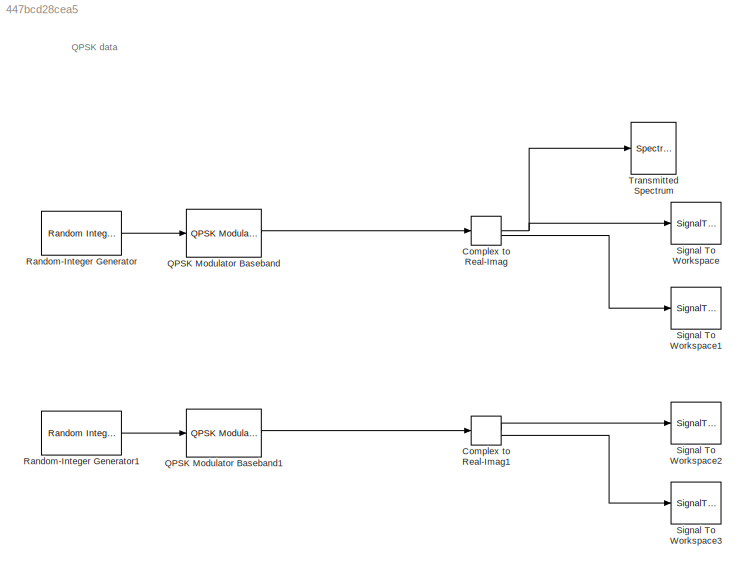
MODEL slx_447bcd28cea5
KIND model
CONFIG AbsTol = auto
CONFIG EnableMultiTasking = on
CONFIG FixedStep = auto
CONFIG MaxStep = auto
CONFIG MinStep = auto
CONFIG RelTol = 1e-3
CONFIG SampleTimeConstraint = Unconstrained
CONFIG SolverName = ode45
CONFIG StartTime = 0.0
CONFIG StopTime = 0.8e-3
BLOCK [ComplexToRealImag] Complex to Real-Imag
BLOCK [ComplexToRealImag] Complex to Real-Imag1
BLOCK [Reference] QPSK Modulator Baseband  REF=commdigbbndpm3/QPSK
Modulator
Baseband
  SourceBlock = commdigbbndpm3/QPSK\nModulator\nBaseband
  SourceType = QPSK Modulator Baseband
BLOCK [Reference] QPSK Modulator Baseband1  REF=commdigbbndpm3/QPSK
Modulator
Baseband
  SourceBlock = commdigbbndpm3/QPSK\nModulator\nBaseband
  SourceType = QPSK Modulator Baseband
BLOCK [Reference] Random-Integer Generator  REF=commrandsrc2/Random Integer
Generator
  SourceBlock = commrandsrc2/Random Integer\nGenerator
  SourceType = Random Integer Generator
BLOCK [Reference] Random-Integer Generator1  REF=commrandsrc2/Random Integer
Generator
  SourceBlock = commrandsrc2/Random Integer\nGenerator
  SourceType = Random Integer Generator
BLOCK [SignalToWorkspace] Signal To Workspace
  CopyFcn = dspblkcopystw(gcbh);
  FixptAsFi = on
  MaxDataPoints = inf
  VariableName = I1
BLOCK [SignalToWorkspace] Signal To Workspace1
  CopyFcn = dspblkcopystw(gcbh);
  FixptAsFi = on
  MaxDataPoints = inf
  VariableName = Q1
BLOCK [SignalToWorkspace] Signal To Workspace2
  CopyFcn = dspblkcopystw(gcbh);
  FixptAsFi = on
  MaxDataPoints = inf
  VariableName = I2
BLOCK [SignalToWorkspace] Signal To Workspace3
  CopyFcn = dspblkcopystw(gcbh);
  FixptAsFi = on
  MaxDataPoints = inf
  VariableName = Q2
BLOCK [SpectrumAnalyzer] Transmitted Spectrum
  AveragingMethod = Running
  DefaultConfigurationName = spbscopes.SpectrumAnalyzerBlockCfg
  GraphicalSettings = {"GraphicalSettings":{"Style":{"BackgroundColor":[0.1568627450980392,0.1568627450980392,0.1568627450980392],"AxesColor":[0,0,0],"LabelsColor":[0.6862745098039216,0.6862745098039216,0.6862745098039216],"PreserveColors":false,"Visible":[true],"LineStyle":["-"],"LineColor":[[1,1,0.06666666666666667]],"LineWidth":[1.5],"Marker":["none"],"FontSize":"small"},"Cursors":{"Enabled":false,"XLocation":[2,8],...<+831ch>
  Method = Welch
  ScopeFrameLocation = window
  Span = 20000000
  StartFrequency = -10000000
  StopFrequency = 10000000
  WasSavedAsWebScope = on
  WindowPosition = [691.000000,210.000000,800.000000,500.000000,]
  YLimits = [-33.54842383,8.9169021]
ANNOTATION (root): QPSK data
LINE Complex to Real-Imag1:1 -> Signal To Workspace2:1
LINE Complex to Real-Imag1:2 -> Signal To Workspace3:1
NET Complex to Real-Imag:1 -> Signal To Workspace:1, Transmitted Spectrum:1
LINE Complex to Real-Imag:2 -> Signal To Workspace1:1
LINE QPSK Modulator Baseband1:1 -> Complex to Real-Imag1:1
LINE QPSK Modulator Baseband:1 -> Complex to Real-Imag:1
LINE Random-Integer Generator1:1 -> QPSK Modulator Baseband1:1
LINE Random-Integer Generator:1 -> QPSK Modulator Baseband:1
note: NET lines group one-source signal fan-out (src -> all destinations, sorted); 1:1 wires keep LINE
